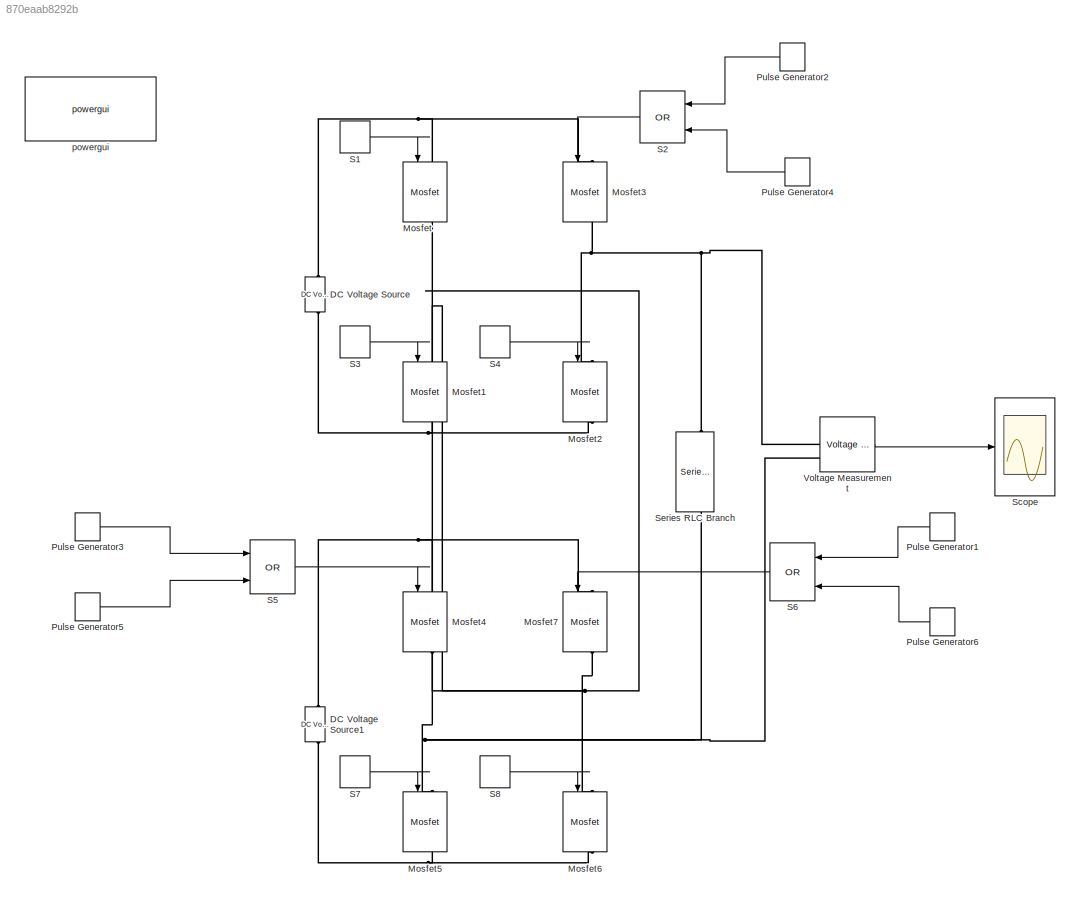
MODEL slx_870eaab8292b
KIND model
CONFIG AbsTol = auto
CONFIG EnableMultiTasking = off
CONFIG FixedStep = auto
CONFIG MaxStep = auto
CONFIG MinStep = auto
CONFIG RelTol = 1e-3
CONFIG SampleTimeConstraint = Unconstrained
CONFIG SolverName = VariableStepAuto
CONFIG StartTime = 0.0
CONFIG StopTime = 0.08
BLOCK [Reference] DC Voltage Source  REF=spsDCVoltageSourceLib/DC Voltage Source
  LibrarySourceBlock = sps_lib/Sources/DC Voltage Source
  SourceBlock = spsDCVoltageSourceLib/DC Voltage Source
  SourceType = DC Voltage Source
BLOCK [Reference] DC Voltage Source1  REF=spsDCVoltageSourceLib/DC Voltage Source
  LibrarySourceBlock = sps_lib/Sources/DC Voltage Source
  SourceBlock = spsDCVoltageSourceLib/DC Voltage Source
  SourceType = DC Voltage Source
BLOCK [Reference] Mosfet  REF=spsMosfetLib/Mosfet
  LibrarySourceBlock = sps_lib/Power Electronics/Mosfet
  NameLocation = right
  SourceBlock = spsMosfetLib/Mosfet
  SourceType = Mosfet
BLOCK [Reference] Mosfet1  REF=spsMosfetLib/Mosfet
  LibrarySourceBlock = sps_lib/Power Electronics/Mosfet
  NameLocation = right
  SourceBlock = spsMosfetLib/Mosfet
  SourceType = Mosfet
BLOCK [Reference] Mosfet2  REF=spsMosfetLib/Mosfet
  LibrarySourceBlock = sps_lib/Power Electronics/Mosfet
  NameLocation = right
  SourceBlock = spsMosfetLib/Mosfet
  SourceType = Mosfet
BLOCK [Reference] Mosfet3  REF=spsMosfetLib/Mosfet
  LibrarySourceBlock = sps_lib/Power Electronics/Mosfet
  NameLocation = right
  SourceBlock = spsMosfetLib/Mosfet
  SourceType = Mosfet
BLOCK [Reference] Mosfet4  REF=spsMosfetLib/Mosfet
  LibrarySourceBlock = sps_lib/Power Electronics/Mosfet
  NameLocation = right
  SourceBlock = spsMosfetLib/Mosfet
  SourceType = Mosfet
BLOCK [Reference] Mosfet5  REF=spsMosfetLib/Mosfet
  LibrarySourceBlock = sps_lib/Power Electronics/Mosfet
  NameLocation = right
  SourceBlock = spsMosfetLib/Mosfet
  SourceType = Mosfet
BLOCK [Reference] Mosfet6  REF=spsMosfetLib/Mosfet
  LibrarySourceBlock = sps_lib/Power Electronics/Mosfet
  NameLocation = right
  SourceBlock = spsMosfetLib/Mosfet
  SourceType = Mosfet
BLOCK [Reference] Mosfet7  REF=spsMosfetLib/Mosfet
  LibrarySourceBlock = sps_lib/Power Electronics/Mosfet
  NameLocation = right
  SourceBlock = spsMosfetLib/Mosfet
  SourceType = Mosfet
BLOCK [DiscretePulseGenerator] Pulse Generator1
  Period = 0.02
  PhaseDelay = (0.02/8)*0
  PulseType = Time based
  PulseWidth = (2/8)*100
BLOCK [DiscretePulseGenerator] Pulse Generator2
  Period = 0.02
  PhaseDelay = (0.02/8)*0
  PulseType = Time based
  PulseWidth = (1/8)*100
BLOCK [DiscretePulseGenerator] Pulse Generator3
  Period = 0.02
  PhaseDelay = (0.02/8)*0
  PulseType = Time based
  PulseWidth = (6/8)*100
BLOCK [DiscretePulseGenerator] Pulse Generator4
  Period = 0.02
  PhaseDelay = (0.02/8)*4
  PulseType = Time based
  PulseWidth = (4/8)*100
BLOCK [DiscretePulseGenerator] Pulse Generator5
  Period = 0.02
  PhaseDelay = (0.02/8)*7
  PulseType = Time based
  PulseWidth = (1/8)*100
BLOCK [DiscretePulseGenerator] Pulse Generator6
  Period = 0.02
  PhaseDelay = (0.02/8)*3
  PulseType = Time based
  PulseWidth = (5/8)*100
BLOCK [DiscretePulseGenerator] S1
  Period = 0.02
  PhaseDelay = (0.02/8)*0
  PulseType = Time based
  PulseWidth = (5/8)*100
BLOCK [Logic] S2
  AllPortsSameDT = off
  Inputs = 3
  Operator = OR
  OutDataTypeStr = boolean
BLOCK [DiscretePulseGenerator] S3
  Period = 0.02
  PhaseDelay = (0.02/8)*5
  PulseType = Time based
  PulseWidth = (3/8)*100
BLOCK [DiscretePulseGenerator] S4
  Period = 0.02
  PhaseDelay = (0.02/8)*1
  PulseType = Time based
  PulseWidth = (3/8)*100
BLOCK [Logic] S5
  AllPortsSameDT = off
  Inputs = 3
  Operator = OR
  OutDataTypeStr = boolean
BLOCK [Logic] S6
  AllPortsSameDT = off
  Inputs = 3
  Operator = OR
  OutDataTypeStr = boolean
BLOCK [DiscretePulseGenerator] S7
  Period = 0.02
  PhaseDelay = (0.02/8)*6
  PulseType = Time based
  PulseWidth = (1/8)*100
BLOCK [DiscretePulseGenerator] S8
  Period = 0.02
  PhaseDelay = (0.02/8)*2
  PulseType = Time based
  PulseWidth = (1/8)*100
BLOCK [Scope] Scope
  Floating = off
  NumInputPorts = 1
  ScopeSpecificationString = Simulink.scopes.TimeScopeBlockCfg('CurrentConfiguration', extmgr.ConfigurationSet(extmgr.Configuration('Core','General UI',true),extmgr.Configuration('Core','Source UI',true),extmgr.Configuration('Sources','WiredSimulink',true),extmgr.Configuration('Visuals','Time Domain',true,'SerializedDisplays',{struct('MinYLimReal','-249.00349','MaxYLimReal','249.00349','YLabelReal','','MinYLimMag',' 0.00000',...<+1382ch>
BLOCK [Reference] Series RLC Branch  REF=spsSeriesRLCBranchLib/Series RLC Branch
  LibrarySourceBlock = sps_lib/Passives/Series RLC Branch
  NameLocation = left
  SourceBlock = spsSeriesRLCBranchLib/Series RLC Branch
  SourceType = Series RLC Branch
BLOCK [Reference] Voltage Measurement  REF=spsVoltageMeasurementLib/Voltage Measurement
  LibrarySourceBlock = sps_lib/Sensors and Measurements/Voltage Measurement
  SourceBlock = spsVoltageMeasurementLib/Voltage Measurement
  SourceType = Voltage Measurement
  UserDataPersistent = on
BLOCK [Reference] powergui  REF=spspowerguiLib/powergui
  Priority = 1
  SourceBlock = spspowerguiLib/powergui
  SourceType = PSB option menu block
LINE Pulse Generator1:1 -> S6:1
LINE Pulse Generator2:1 -> S2:1
LINE Pulse Generator3:1 -> S5:1
LINE Pulse Generator4:1 -> S2:3
LINE Pulse Generator5:1 -> S5:3
LINE Pulse Generator6:1 -> S6:3
LINE S1:1 -> Mosfet:1
LINE S2:1 -> Mosfet3:1
LINE S3:1 -> Mosfet1:1
LINE S4:1 -> Mosfet2:1
LINE S5:1 -> Mosfet4:1
LINE S6:1 -> Mosfet7:1
LINE S7:1 -> Mosfet5:1
LINE S8:1 -> Mosfet6:1
LINE Voltage Measurement:1 -> Scope:1
PNET net1: DC Voltage Source1:LConn1 -- Mosfet5:RConn1 -- Mosfet6:RConn1
PNET net2: DC Voltage Source1:RConn1 -- Mosfet4:LConn1 -- Mosfet7:LConn1
PNET net3: DC Voltage Source:LConn1 -- Mosfet1:RConn1 -- Mosfet2:RConn1
PNET net4: DC Voltage Source:RConn1 -- Mosfet3:LConn1 -- Mosfet:LConn1
PNET net5: Mosfet1:LConn1 -- Mosfet6:LConn1 -- Mosfet7:RConn1 -- Mosfet:RConn1
PNET net6: Mosfet2:LConn1 -- Mosfet3:RConn1 -- Series RLC Branch:LConn1 -- Voltage Measurement:LConn1
PNET net7: Mosfet4:RConn1 -- Mosfet5:LConn1 -- Series RLC Branch:RConn1 -- Voltage Measurement:LConn2
note: PNET lines group multi-terminal physical nets as a canonical sorted terminal list (undirected conserving connections); 2-terminal nets keep the pairwise PLINE form
